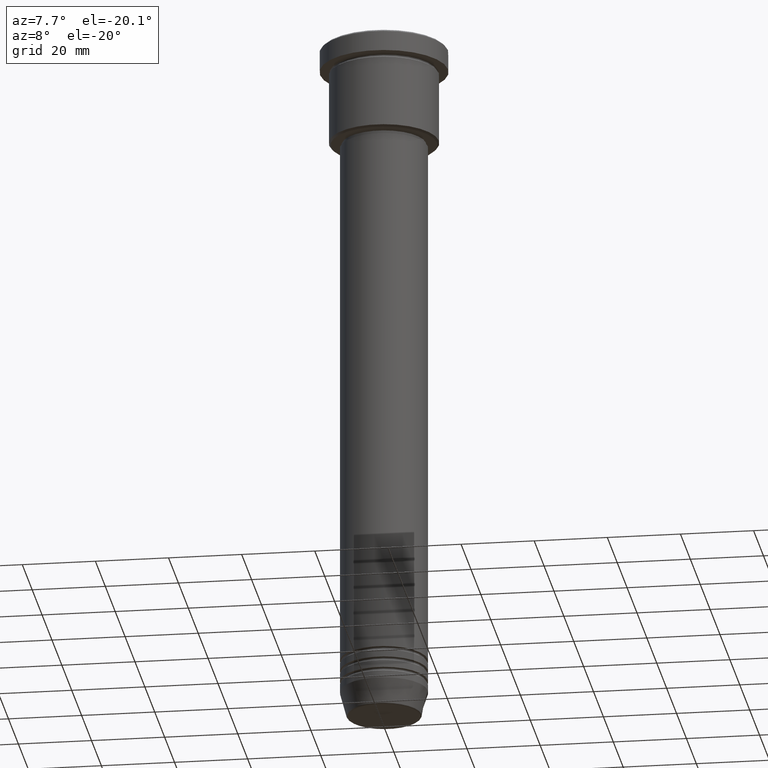
[diagram: clean part render]
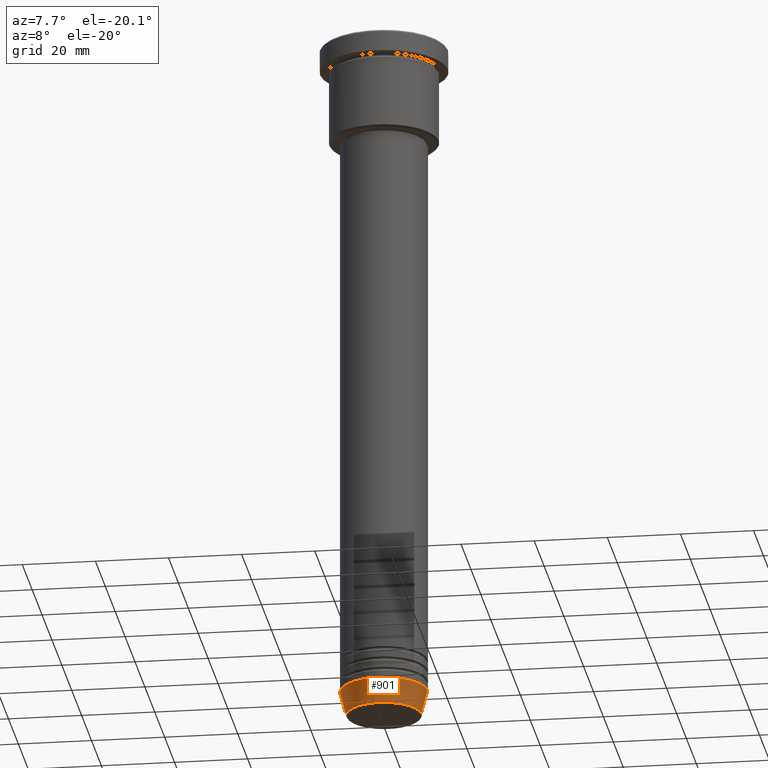
[diagram: same view with one face highlighted and labeled with its STEP entity id]
A machine part, auxiliary view. The second image highlights one B-rep face of the part: STEP entity #901.
In plain terms, the highlighted conical surface has half-angle 15 deg.
Its self-contained STEP definition (entity closure, byte-faithful):
#15 = AXIS2_PLACEMENT_3D ( 'NONE', #719, #331, #622 ) ;
#39 = CARTESIAN_POINT ( 'NONE',  ( -12.00000000000000000, 1.469576158976823947E-15, -185.0000000000000284 ) ) ;
#65 = FACE_OUTER_BOUND ( 'NONE', #1131, .T. ) ;
#116 = EDGE_CURVE ( 'NONE', #368, #923, #925, .T. ) ;
#194 = CARTESIAN_POINT ( 'NONE',  ( -12.00000000000000000, 1.469576158976823947E-15, -185.0000000000000284 ) ) ;
#237 = DIRECTION ( 'NONE',  ( 1.000000000000000000, 0.000000000000000000, 0.000000000000000000 ) ) ;
#255 = CARTESIAN_POINT ( 'NONE',  ( 12.00000000000000000, 0.000000000000000000, -185.0000000000000284 ) ) ;
#276 = CARTESIAN_POINT ( 'NONE',  ( 0.000000000000000000, 0.000000000000000000, -185.0000000000000284 ) ) ;
#278 = ORIENTED_EDGE ( 'NONE', *, *, #1037, .F. ) ;
#331 = DIRECTION ( 'NONE',  ( -0.000000000000000000, -0.000000000000000000, 1.000000000000000000 ) ) ;
#335 = CIRCLE ( 'NONE', #15, 10.22365507213719660 ) ;
#368 = VERTEX_POINT ( 'NONE', #677 ) ;
#377 = CIRCLE ( 'NONE', #1161, 12.00000000000000000 ) ;
#518 = DIRECTION ( 'NONE',  ( -0.000000000000000000, -0.000000000000000000, 1.000000000000000000 ) ) ;
#570 = ORIENTED_EDGE ( 'NONE', *, *, #699, .F. ) ;
#573 = VECTOR ( 'NONE', #857, 1000.000000000000000 ) ;
#588 = CARTESIAN_POINT ( 'NONE',  ( 12.00000000000000000, 0.000000000000000000, -185.0000000000000284 ) ) ;
#622 = DIRECTION ( 'NONE',  ( 1.000000000000000000, 0.000000000000000000, 0.000000000000000000 ) ) ;
#677 = CARTESIAN_POINT ( 'NONE',  ( 10.22365507213719660, 0.000000000000000000, -191.6294095225512706 ) ) ;
#699 = EDGE_CURVE ( 'NONE', #1098, #1049, #958, .T. ) ;
#719 = CARTESIAN_POINT ( 'NONE',  ( 0.000000000000000000, 0.000000000000000000, -191.6294095225512706 ) ) ;
#750 = DIRECTION ( 'NONE',  ( -0.000000000000000000, -0.000000000000000000, 1.000000000000000000 ) ) ;
#809 = AXIS2_PLACEMENT_3D ( 'NONE', #1155, #518, #237 ) ;
#844 = VECTOR ( 'NONE', #1129, 1000.000000000000000 ) ;
#852 = EDGE_CURVE ( 'NONE', #1098, #368, #335, .T. ) ;
#857 = DIRECTION ( 'NONE',  ( 0.2588190451025213501, 0.000000000000000000, 0.9659258262890680902 ) ) ;
#889 = ORIENTED_EDGE ( 'NONE', *, *, #116, .T. ) ;
#901 = ADVANCED_FACE ( 'NONE', ( #65 ), #1180, .T. ) ;
#923 = VERTEX_POINT ( 'NONE', #255 ) ;
#925 = LINE ( 'NONE', #588, #573 ) ;
#933 = ORIENTED_EDGE ( 'NONE', *, *, #852, .T. ) ;
#946 = CARTESIAN_POINT ( 'NONE',  ( -10.22365507213719837, 1.360806402472383336E-15, -191.6294095225512706 ) ) ;
#958 = LINE ( 'NONE', #39, #844 ) ;
#1020 = DIRECTION ( 'NONE',  ( 1.000000000000000000, 0.000000000000000000, 0.000000000000000000 ) ) ;
#1037 = EDGE_CURVE ( 'NONE', #1049, #923, #377, .T. ) ;
#1049 = VERTEX_POINT ( 'NONE', #194 ) ;
#1098 = VERTEX_POINT ( 'NONE', #946 ) ;
#1129 = DIRECTION ( 'NONE',  ( -0.2588190451025213501, 3.169619151431772337E-17, 0.9659258262890680902 ) ) ;
#1131 = EDGE_LOOP ( 'NONE', ( #570, #933, #889, #278 ) ) ;
#1155 = CARTESIAN_POINT ( 'NONE',  ( 0.000000000000000000, 0.000000000000000000, -185.0000000000000284 ) ) ;
#1161 = AXIS2_PLACEMENT_3D ( 'NONE', #276, #750, #1020 ) ;
#1180 = CONICAL_SURFACE ( 'NONE', #809, 12.00000000000000000, 0.2617993877991500740 ) ;